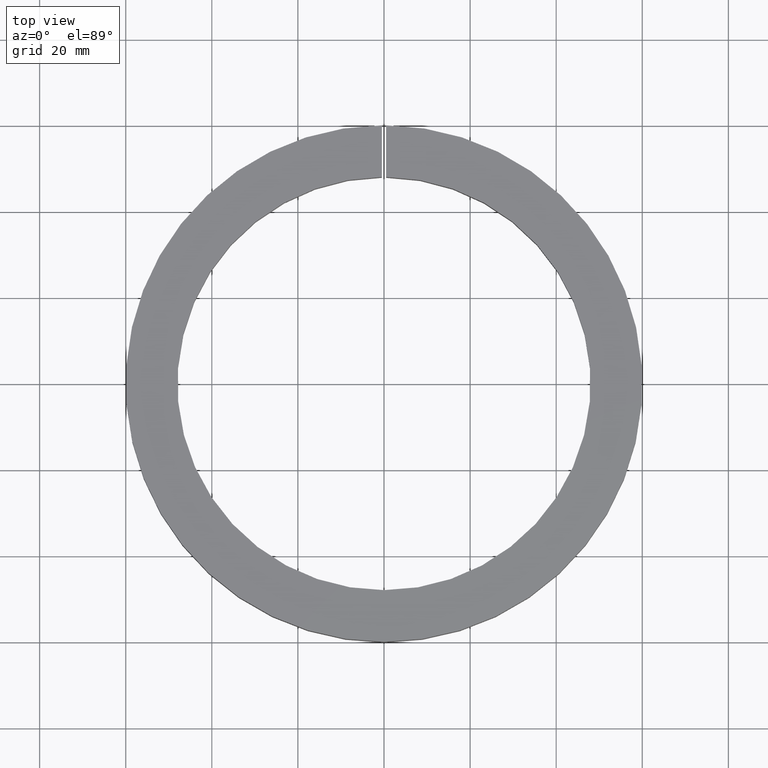
[diagram: clean part render]
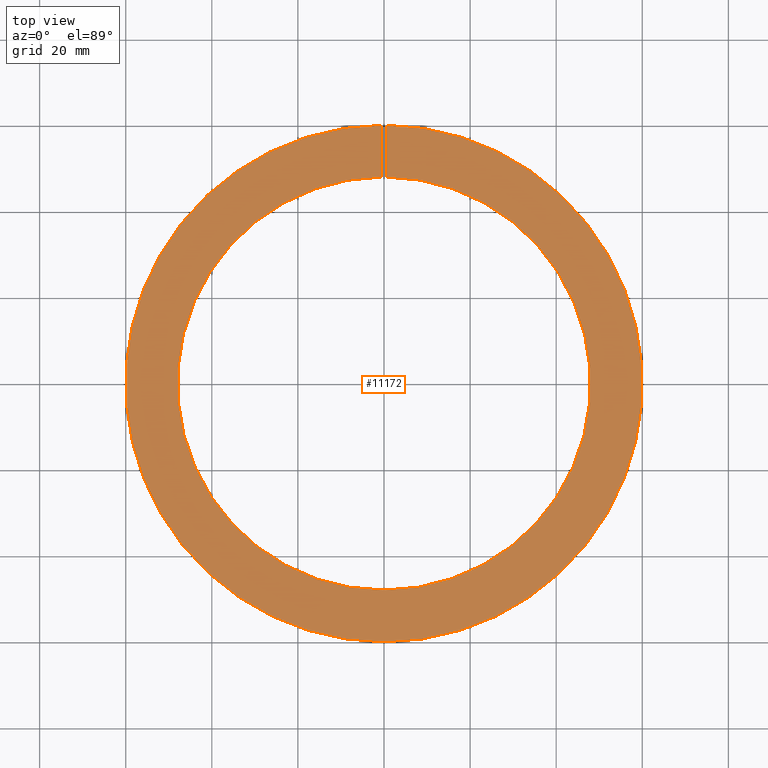
[diagram: same view with one face highlighted and labeled with its STEP entity id]
A machine part, top view. The second image highlights one B-rep face of the part: STEP entity #11172.
In plain terms, the highlighted planar face has unit normal (-0, 0, -1).
Its self-contained STEP definition (entity closure, byte-faithful):
#186 = DIRECTION ( 'NONE',  ( 0.0000000000000000000, 1.000000000000000000, -0.0000000000000000000 ) ) ;
#888 = VECTOR ( 'NONE', #186, 1000.000000000000000 ) ;
#899 = CARTESIAN_POINT ( 'NONE',  ( -0.5000000000000000000, 0.0000000000000000000, 6.000000000000000900 ) ) ;
#1424 = DIRECTION ( 'NONE',  ( -1.000000000000000000, 0.0000000000000000000, 0.0000000000000000000 ) ) ;
#1486 = EDGE_CURVE ( 'NONE', #10305, #2759, #8401, .T. ) ;
#1511 = DIRECTION ( 'NONE',  ( -0.0000000000000000000, -0.0000000000000000000, -1.000000000000000000 ) ) ;
#2226 = DIRECTION ( 'NONE',  ( -1.000000000000000000, 0.0000000000000000000, 0.0000000000000000000 ) ) ;
#2344 = ORIENTED_EDGE ( 'NONE', *, *, #2612, .T. ) ;
#2612 = EDGE_CURVE ( 'NONE', #7014, #11448, #3608, .T. ) ;
#2759 = VERTEX_POINT ( 'NONE', #3934 ) ;
#2865 = CARTESIAN_POINT ( 'NONE',  ( 0.5000000000000000000, 47.99739576268695600, 6.000000000000000900 ) ) ;
#2961 = DIRECTION ( 'NONE',  ( -0.0000000000000000000, -0.0000000000000000000, -1.000000000000000000 ) ) ;
#3076 = ORIENTED_EDGE ( 'NONE', *, *, #1486, .F. ) ;
#3608 = LINE ( 'NONE', #899, #6403 ) ;
#3711 = EDGE_CURVE ( 'NONE', #2759, #11448, #7405, .T. ) ;
#3883 = CARTESIAN_POINT ( 'NONE',  ( 0.0000000000000000000, 0.0000000000000000000, 5.999999999999998200 ) ) ;
#3934 = CARTESIAN_POINT ( 'NONE',  ( 0.5000000000000000000, 59.99791663049643400, 5.999999999999998200 ) ) ;
#4268 = ORIENTED_EDGE ( 'NONE', *, *, #6777, .T. ) ;
#4792 = CARTESIAN_POINT ( 'NONE',  ( -0.5000000000000000000, 47.99739576268695600, 6.000000000000000900 ) ) ;
#5146 = CARTESIAN_POINT ( 'NONE',  ( 0.0000000000000000000, -47.99999999999999300, 6.000000000000000000 ) ) ;
#5215 = CARTESIAN_POINT ( 'NONE',  ( 0.0000000000000000000, 0.0000000000000000000, 6.000000000000000900 ) ) ;
#5558 = DIRECTION ( 'NONE',  ( 0.0000000000000000000, 1.000000000000000000, -0.0000000000000000000 ) ) ;
#5909 = CARTESIAN_POINT ( 'NONE',  ( -0.5000000000000000000, 59.99791663049642700, 6.000000000000000900 ) ) ;
#6224 = CIRCLE ( 'NONE', #8469, 47.99999999999999300 ) ;
#6403 = VECTOR ( 'NONE', #5558, 1000.000000000000000 ) ;
#6777 = EDGE_CURVE ( 'NONE', #10305, #7014, #6224, .T. ) ;
#6894 = ORIENTED_EDGE ( 'NONE', *, *, #3711, .F. ) ;
#7014 = VERTEX_POINT ( 'NONE', #4792 ) ;
#7405 = CIRCLE ( 'NONE', #11679, 60.00000000000000000 ) ;
#7812 = CARTESIAN_POINT ( 'NONE',  ( 0.5000000000000000000, 0.0000000000000000000, 6.000000000000000900 ) ) ;
#8084 = AXIS2_PLACEMENT_3D ( 'NONE', #5146, #10655, #2226 ) ;
#8401 = LINE ( 'NONE', #7812, #888 ) ;
#8469 = AXIS2_PLACEMENT_3D ( 'NONE', #5215, #1511, #1424 ) ;
#8805 = PLANE ( 'NONE',  #8084 ) ;
#9071 = EDGE_LOOP ( 'NONE', ( #6894, #3076, #4268, #2344 ) ) ;
#9535 = DIRECTION ( 'NONE',  ( -1.000000000000000000, 0.0000000000000000000, 0.0000000000000000000 ) ) ;
#10305 = VERTEX_POINT ( 'NONE', #2865 ) ;
#10655 = DIRECTION ( 'NONE',  ( -0.0000000000000000000, 0.0000000000000000000, -1.000000000000000000 ) ) ;
#11172 = ADVANCED_FACE ( 'NONE', ( #11446 ), #8805, .F. ) ;
#11446 = FACE_OUTER_BOUND ( 'NONE', #9071, .T. ) ;
#11448 = VERTEX_POINT ( 'NONE', #5909 ) ;
#11679 = AXIS2_PLACEMENT_3D ( 'NONE', #3883, #2961, #9535 ) ;